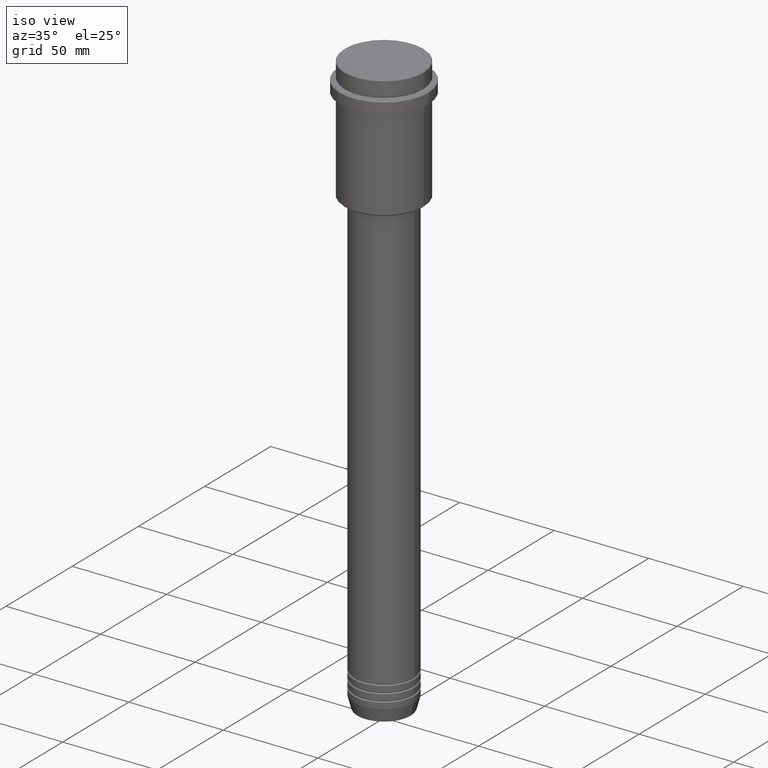
[diagram: clean part render]
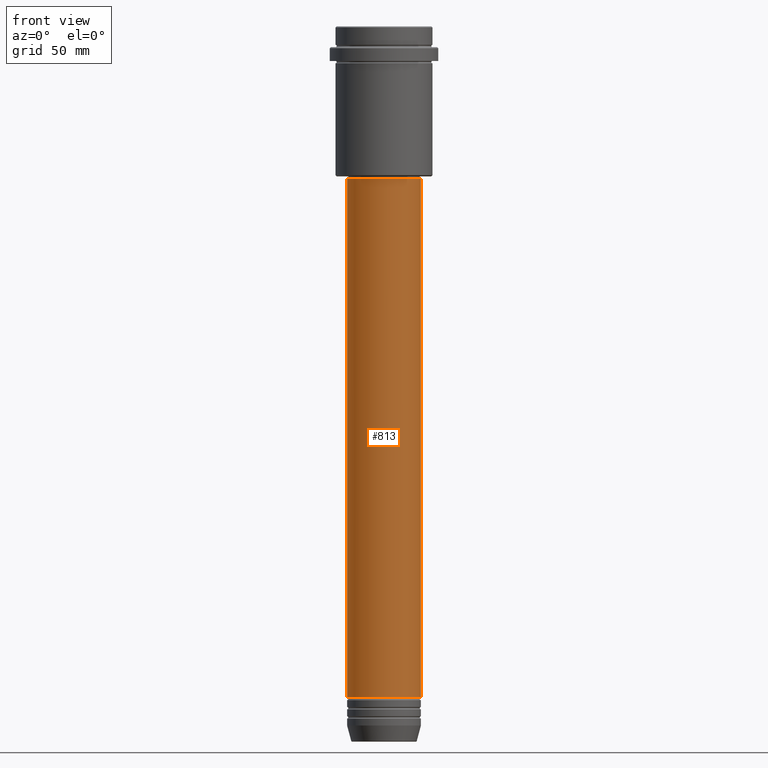
[diagram: tour spotlight — one face highlighted and labeled with its STEP entity id]
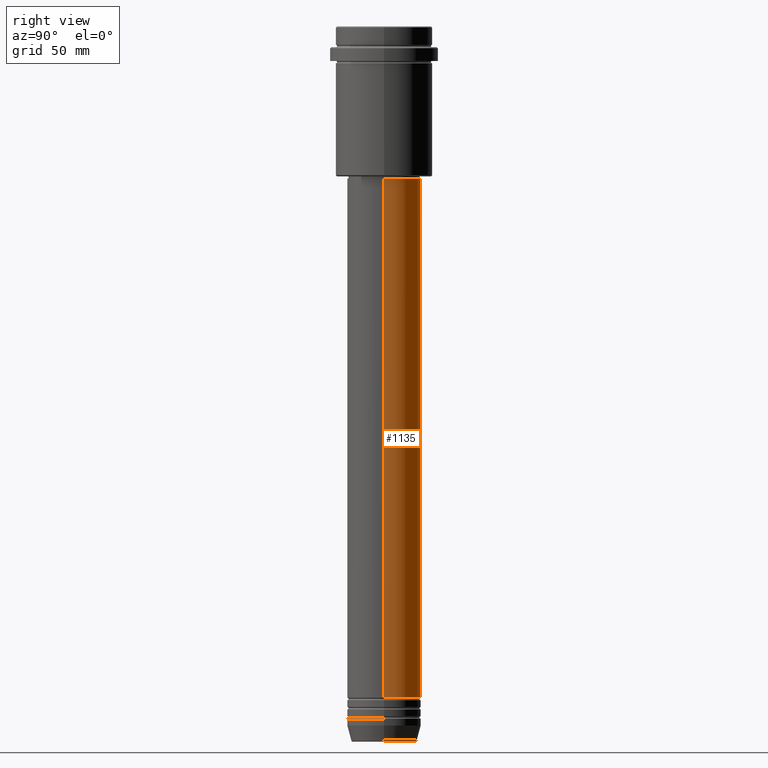
[diagram: tour spotlight — one face highlighted and labeled with its STEP entity id]
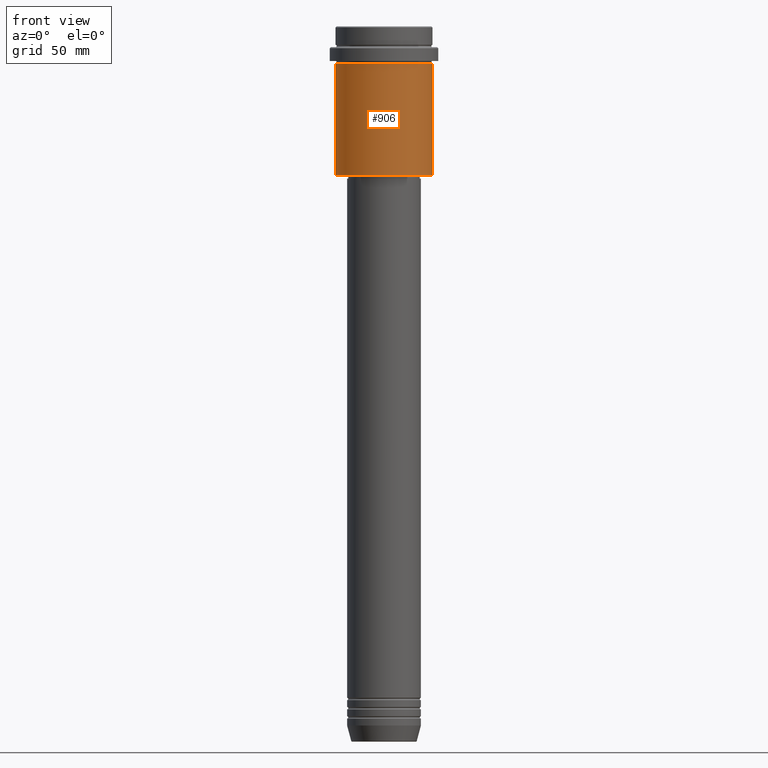
[diagram: tour spotlight — one face highlighted and labeled with its STEP entity id]
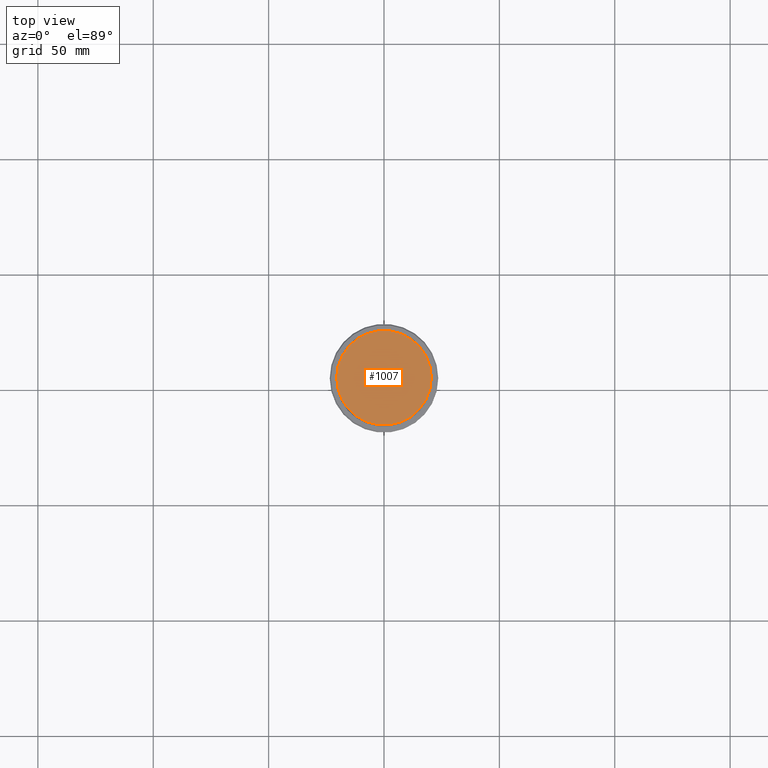
[diagram: tour spotlight — one face highlighted and labeled with its STEP entity id]
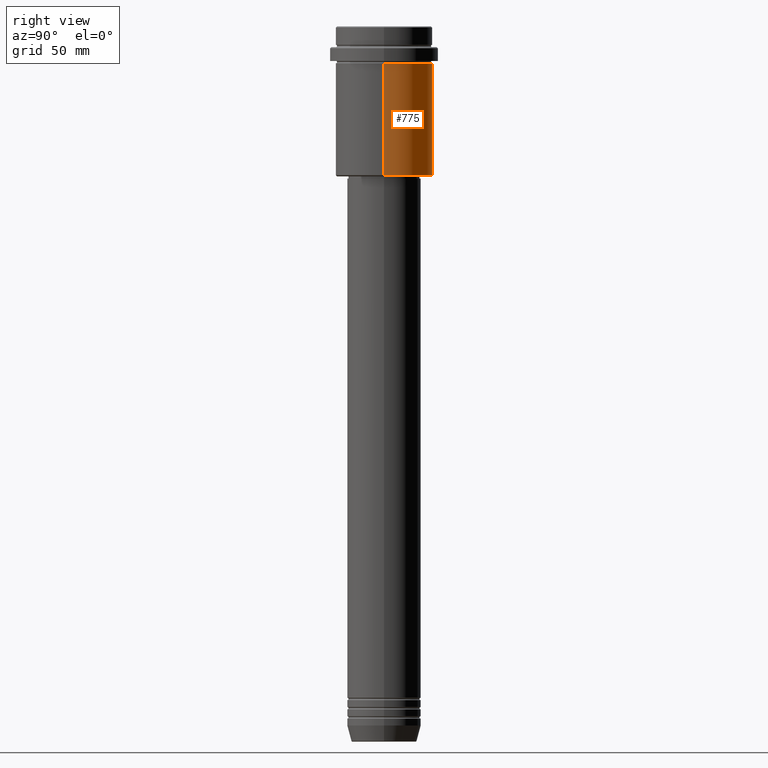
[diagram: tour spotlight — one face highlighted and labeled with its STEP entity id]
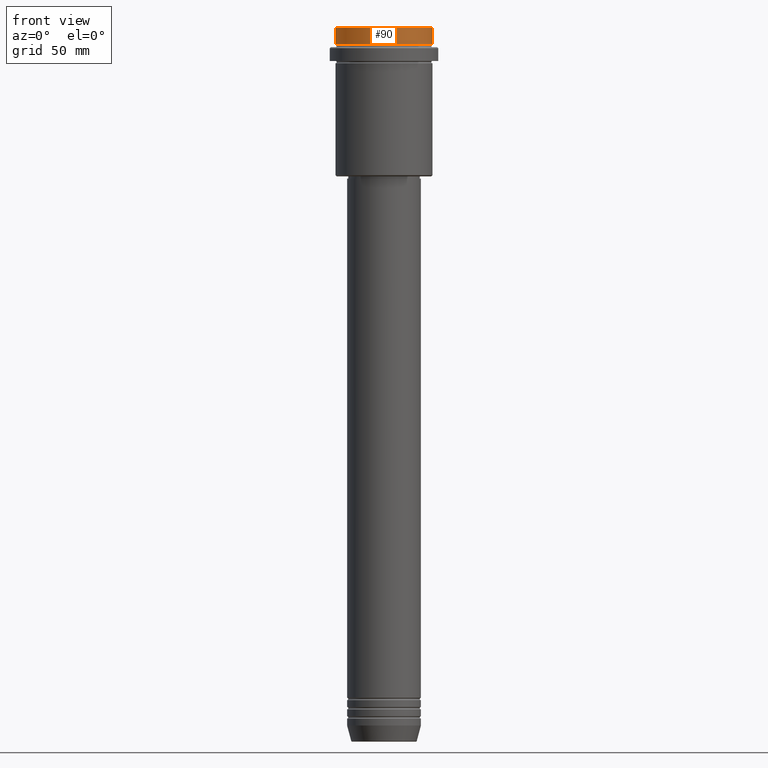
[diagram: tour spotlight — one face highlighted and labeled with its STEP entity id]
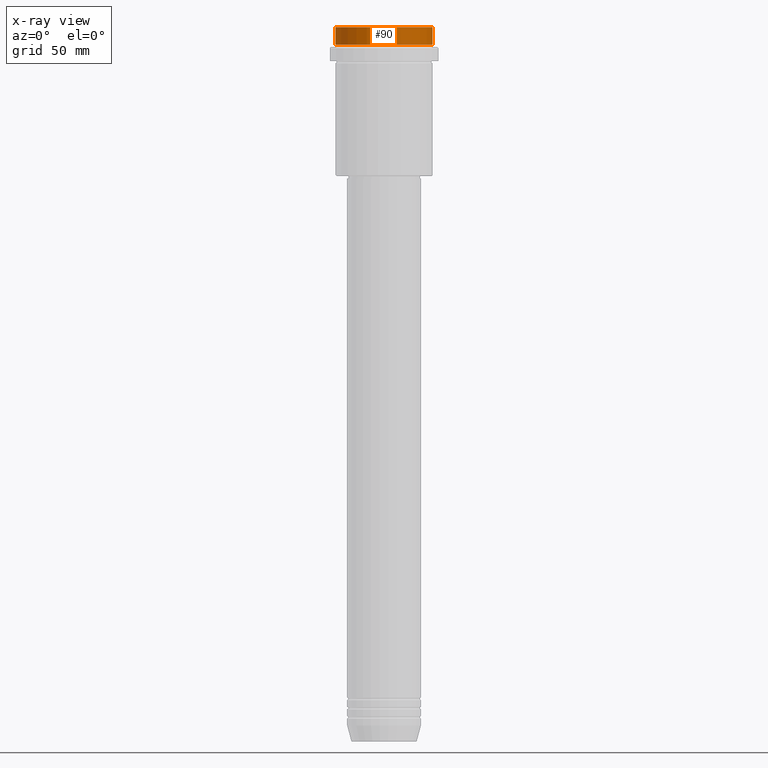
[diagram: x-ray of the same camera — body ghosted, this tour face saturated]
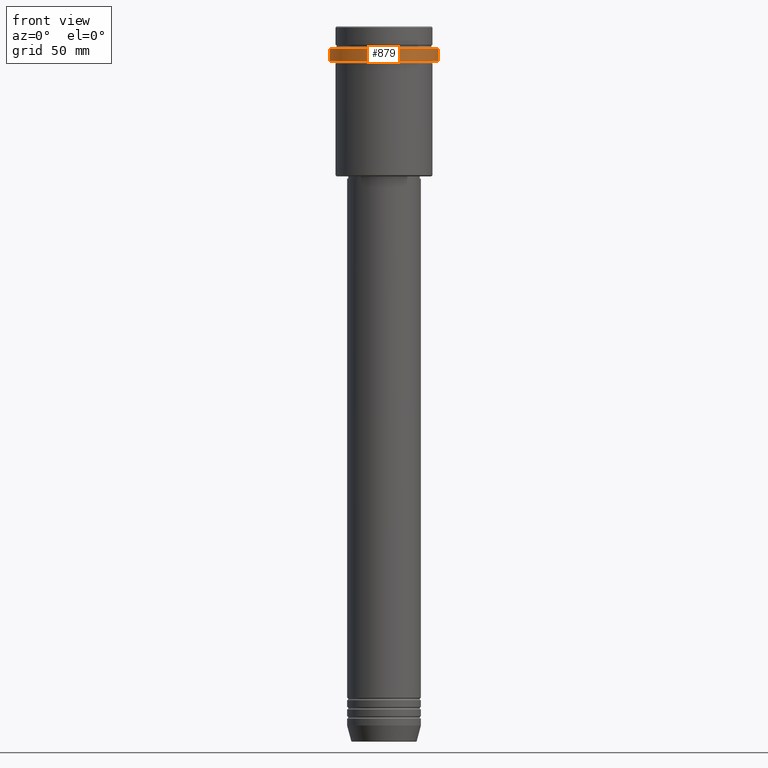
[diagram: tour spotlight — one face highlighted and labeled with its STEP entity id]
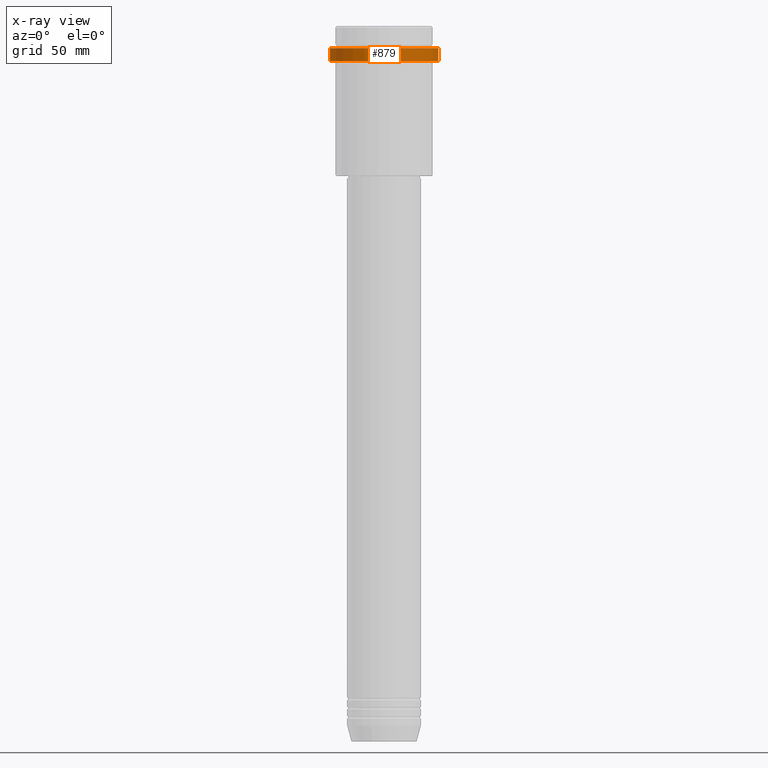
[diagram: x-ray of the same camera — body ghosted, this tour face saturated]
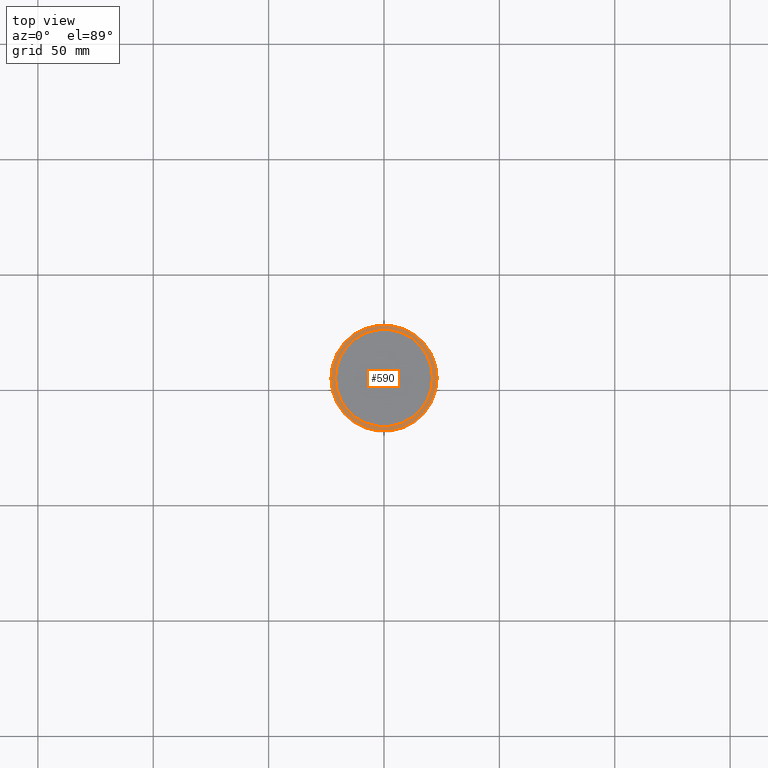
[diagram: tour spotlight — one face highlighted and labeled with its STEP entity id]
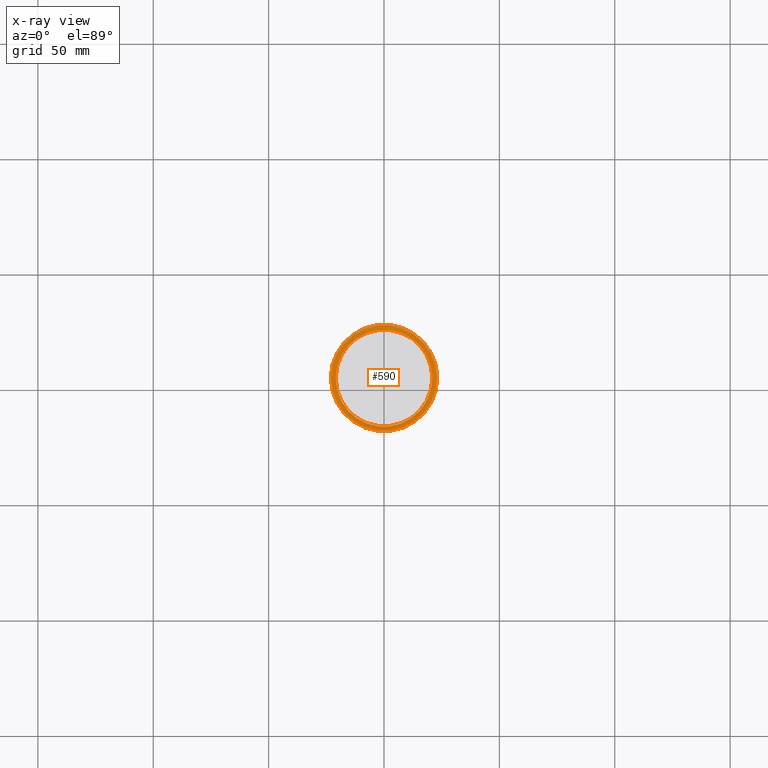
[diagram: x-ray of the same camera — body ghosted, this tour face saturated]
A machine part: a face-by-face anatomy tour. The part has 52 B-rep faces; the first image is the clean iso view, then the 8 largest visible faces are spotlighted one at a time (largest first), each with its STEP entity span.

Face 1 — front view, entity #813. In plain terms, the highlighted cylindrical surface (partial cylindrical patch) has radius 16 mm, axis along (-0, -0, 1).
Definition (entity closure, byte-faithful):
#5 = CARTESIAN_POINT ( 'NONE',  ( -16.00000000000000000, 1.959434878635765131E-15, -290.9999999999998863 ) ) ;
#23 = FACE_OUTER_BOUND ( 'NONE', #1142, .T. ) ;
#30 = DIRECTION ( 'NONE',  ( 1.000000000000000000, 0.000000000000000000, 0.000000000000000000 ) ) ;
#79 = LINE ( 'NONE', #841, #194 ) ;
#89 = DIRECTION ( 'NONE',  ( -0.000000000000000000, -0.000000000000000000, 1.000000000000000000 ) ) ;
#151 = AXIS2_PLACEMENT_3D ( 'NONE', #244, #1115, #30 ) ;
#153 = ORIENTED_EDGE ( 'NONE', *, *, #1412, .T. ) ;
#168 = CARTESIAN_POINT ( 'NONE',  ( 16.00000000000000000, 0.000000000000000000, -290.9999999999998863 ) ) ;
#180 = CARTESIAN_POINT ( 'NONE',  ( 0.000000000000000000, 0.000000000000000000, -290.9999999999998863 ) ) ;
#194 = VECTOR ( 'NONE', #731, 1000.000000000000000 ) ;
#204 = EDGE_CURVE ( 'NONE', #1210, #1396, #1285, .T. ) ;
#214 = CARTESIAN_POINT ( 'NONE',  ( 16.00000000000000355, 0.000000000000000000, -65.99999999999991473 ) ) ;
#244 = CARTESIAN_POINT ( 'NONE',  ( 0.000000000000000000, 0.000000000000000000, 0.000000000000000000 ) ) ;
#395 = CARTESIAN_POINT ( 'NONE',  ( -16.00000000000000355, 1.959434878635765526E-15, -65.99999999999991473 ) ) ;
#403 = ORIENTED_EDGE ( 'NONE', *, *, #582, .F. ) ;
#573 = VERTEX_POINT ( 'NONE', #214 ) ;
#582 = EDGE_CURVE ( 'NONE', #1210, #1119, #79, .T. ) ;
#625 = DIRECTION ( 'NONE',  ( -0.000000000000000000, -0.000000000000000000, 1.000000000000000000 ) ) ;
#641 = VECTOR ( 'NONE', #625, 1000.000000000000000 ) ;
#668 = EDGE_CURVE ( 'NONE', #1119, #573, #1377, .T. ) ;
#696 = AXIS2_PLACEMENT_3D ( 'NONE', #180, #89, #1394 ) ;
#731 = DIRECTION ( 'NONE',  ( -0.000000000000000000, -0.000000000000000000, 1.000000000000000000 ) ) ;
#813 = ADVANCED_FACE ( 'NONE', ( #23 ), #1319, .T. ) ;
#841 = CARTESIAN_POINT ( 'NONE',  ( -16.00000000000000000, 1.959434878635765131E-15, 0.000000000000000000 ) ) ;
#848 = CARTESIAN_POINT ( 'NONE',  ( 0.000000000000000000, 0.000000000000000000, -65.99999999999991473 ) ) ;
#965 = AXIS2_PLACEMENT_3D ( 'NONE', #848, #1293, #1282 ) ;
#1038 = CARTESIAN_POINT ( 'NONE',  ( 16.00000000000000000, 0.000000000000000000, 0.000000000000000000 ) ) ;
#1115 = DIRECTION ( 'NONE',  ( -0.000000000000000000, -0.000000000000000000, 1.000000000000000000 ) ) ;
#1119 = VERTEX_POINT ( 'NONE', #395 ) ;
#1142 = EDGE_LOOP ( 'NONE', ( #403, #1246, #153, #1354 ) ) ;
#1210 = VERTEX_POINT ( 'NONE', #5 ) ;
#1246 = ORIENTED_EDGE ( 'NONE', *, *, #204, .T. ) ;
#1282 = DIRECTION ( 'NONE',  ( 1.000000000000000000, 0.000000000000000000, 0.000000000000000000 ) ) ;
#1285 = CIRCLE ( 'NONE', #696, 16.00000000000000000 ) ;
#1293 = DIRECTION ( 'NONE',  ( -0.000000000000000000, -0.000000000000000000, 1.000000000000000000 ) ) ;
#1319 = CYLINDRICAL_SURFACE ( 'NONE', #151, 16.00000000000000000 ) ;
#1354 = ORIENTED_EDGE ( 'NONE', *, *, #668, .F. ) ;
#1377 = CIRCLE ( 'NONE', #965, 16.00000000000000355 ) ;
#1382 = LINE ( 'NONE', #1038, #641 ) ;
#1394 = DIRECTION ( 'NONE',  ( 1.000000000000000000, 0.000000000000000000, 0.000000000000000000 ) ) ;
#1396 = VERTEX_POINT ( 'NONE', #168 ) ;
#1412 = EDGE_CURVE ( 'NONE', #1396, #573, #1382, .T. ) ;

Face 2 — right view, entity #1135. In plain terms, the highlighted cylindrical surface (partial cylindrical patch) has radius 16 mm, axis along (-0, -0, 1).
Definition (entity closure, byte-faithful):
#5 = CARTESIAN_POINT ( 'NONE',  ( -16.00000000000000000, 1.959434878635765131E-15, -290.9999999999998863 ) ) ;
#73 = EDGE_CURVE ( 'NONE', #1396, #1210, #1283, .T. ) ;
#79 = LINE ( 'NONE', #841, #194 ) ;
#168 = CARTESIAN_POINT ( 'NONE',  ( 16.00000000000000000, 0.000000000000000000, -290.9999999999998863 ) ) ;
#183 = CYLINDRICAL_SURFACE ( 'NONE', #1015, 16.00000000000000000 ) ;
#187 = DIRECTION ( 'NONE',  ( 1.000000000000000000, 0.000000000000000000, 0.000000000000000000 ) ) ;
#191 = AXIS2_PLACEMENT_3D ( 'NONE', #725, #747, #1155 ) ;
#194 = VECTOR ( 'NONE', #731, 1000.000000000000000 ) ;
#214 = CARTESIAN_POINT ( 'NONE',  ( 16.00000000000000355, 0.000000000000000000, -65.99999999999991473 ) ) ;
#223 = EDGE_CURVE ( 'NONE', #573, #1119, #989, .T. ) ;
#381 = ORIENTED_EDGE ( 'NONE', *, *, #223, .F. ) ;
#395 = CARTESIAN_POINT ( 'NONE',  ( -16.00000000000000355, 1.959434878635765526E-15, -65.99999999999991473 ) ) ;
#405 = CARTESIAN_POINT ( 'NONE',  ( 0.000000000000000000, 0.000000000000000000, -290.9999999999998863 ) ) ;
#447 = DIRECTION ( 'NONE',  ( 1.000000000000000000, 0.000000000000000000, 0.000000000000000000 ) ) ;
#540 = ORIENTED_EDGE ( 'NONE', *, *, #1412, .F. ) ;
#542 = ORIENTED_EDGE ( 'NONE', *, *, #73, .T. ) ;
#573 = VERTEX_POINT ( 'NONE', #214 ) ;
#582 = EDGE_CURVE ( 'NONE', #1210, #1119, #79, .T. ) ;
#625 = DIRECTION ( 'NONE',  ( -0.000000000000000000, -0.000000000000000000, 1.000000000000000000 ) ) ;
#641 = VECTOR ( 'NONE', #625, 1000.000000000000000 ) ;
#673 = AXIS2_PLACEMENT_3D ( 'NONE', #405, #940, #187 ) ;
#725 = CARTESIAN_POINT ( 'NONE',  ( 0.000000000000000000, 0.000000000000000000, -65.99999999999991473 ) ) ;
#728 = FACE_OUTER_BOUND ( 'NONE', #887, .T. ) ;
#731 = DIRECTION ( 'NONE',  ( -0.000000000000000000, -0.000000000000000000, 1.000000000000000000 ) ) ;
#747 = DIRECTION ( 'NONE',  ( -0.000000000000000000, -0.000000000000000000, 1.000000000000000000 ) ) ;
#780 = ORIENTED_EDGE ( 'NONE', *, *, #582, .T. ) ;
#841 = CARTESIAN_POINT ( 'NONE',  ( -16.00000000000000000, 1.959434878635765131E-15, 0.000000000000000000 ) ) ;
#887 = EDGE_LOOP ( 'NONE', ( #542, #780, #381, #540 ) ) ;
#940 = DIRECTION ( 'NONE',  ( -0.000000000000000000, -0.000000000000000000, 1.000000000000000000 ) ) ;
#976 = DIRECTION ( 'NONE',  ( -0.000000000000000000, -0.000000000000000000, 1.000000000000000000 ) ) ;
#989 = CIRCLE ( 'NONE', #191, 16.00000000000000355 ) ;
#1015 = AXIS2_PLACEMENT_3D ( 'NONE', #1090, #976, #447 ) ;
#1038 = CARTESIAN_POINT ( 'NONE',  ( 16.00000000000000000, 0.000000000000000000, 0.000000000000000000 ) ) ;
#1090 = CARTESIAN_POINT ( 'NONE',  ( 0.000000000000000000, 0.000000000000000000, 0.000000000000000000 ) ) ;
#1119 = VERTEX_POINT ( 'NONE', #395 ) ;
#1135 = ADVANCED_FACE ( 'NONE', ( #728 ), #183, .T. ) ;
#1155 = DIRECTION ( 'NONE',  ( 1.000000000000000000, 0.000000000000000000, 0.000000000000000000 ) ) ;
#1210 = VERTEX_POINT ( 'NONE', #5 ) ;
#1283 = CIRCLE ( 'NONE', #673, 16.00000000000000000 ) ;
#1382 = LINE ( 'NONE', #1038, #641 ) ;
#1396 = VERTEX_POINT ( 'NONE', #168 ) ;
#1412 = EDGE_CURVE ( 'NONE', #1396, #573, #1382, .T. ) ;

Face 3 — front view, entity #906. In plain terms, the highlighted cylindrical surface (partial cylindrical patch) has radius 21 mm, axis along (-0, -0, 1).
Definition (entity closure, byte-faithful):
#51 = VECTOR ( 'NONE', #1262, 1000.000000000000000 ) ;
#75 = CARTESIAN_POINT ( 'NONE',  ( -21.00000000000000000, 2.571758278209441661E-15, -64.50000000000001421 ) ) ;
#84 = EDGE_CURVE ( 'NONE', #158, #1415, #615, .T. ) ;
#97 = LINE ( 'NONE', #984, #483 ) ;
#103 = EDGE_CURVE ( 'NONE', #1384, #158, #370, .T. ) ;
#158 = VERTEX_POINT ( 'NONE', #504 ) ;
#263 = DIRECTION ( 'NONE',  ( 1.000000000000000000, 0.000000000000000000, 0.000000000000000000 ) ) ;
#270 = CARTESIAN_POINT ( 'NONE',  ( 0.000000000000000000, 0.000000000000000000, 0.000000000000000000 ) ) ;
#323 = EDGE_CURVE ( 'NONE', #1384, #547, #97, .T. ) ;
#370 = CIRCLE ( 'NONE', #528, 21.00000000000000000 ) ;
#376 = FACE_OUTER_BOUND ( 'NONE', #408, .T. ) ;
#397 = CARTESIAN_POINT ( 'NONE',  ( 0.000000000000000000, 0.000000000000000000, -16.00000000000000355 ) ) ;
#400 = EDGE_CURVE ( 'NONE', #547, #1415, #1333, .T. ) ;
#408 = EDGE_LOOP ( 'NONE', ( #594, #772, #664, #1039 ) ) ;
#483 = VECTOR ( 'NONE', #884, 1000.000000000000000 ) ;
#504 = CARTESIAN_POINT ( 'NONE',  ( 21.00000000000000000, 0.000000000000000000, -64.50000000000001421 ) ) ;
#528 = AXIS2_PLACEMENT_3D ( 'NONE', #1056, #1049, #1169 ) ;
#547 = VERTEX_POINT ( 'NONE', #1166 ) ;
#594 = ORIENTED_EDGE ( 'NONE', *, *, #323, .F. ) ;
#615 = LINE ( 'NONE', #1269, #51 ) ;
#664 = ORIENTED_EDGE ( 'NONE', *, *, #84, .T. ) ;
#704 = CARTESIAN_POINT ( 'NONE',  ( 21.00000000000000000, 0.000000000000000000, -16.00000000000000355 ) ) ;
#772 = ORIENTED_EDGE ( 'NONE', *, *, #103, .T. ) ;
#849 = AXIS2_PLACEMENT_3D ( 'NONE', #397, #1110, #1041 ) ;
#884 = DIRECTION ( 'NONE',  ( -0.000000000000000000, -0.000000000000000000, 1.000000000000000000 ) ) ;
#906 = ADVANCED_FACE ( 'NONE', ( #376 ), #1021, .T. ) ;
#984 = CARTESIAN_POINT ( 'NONE',  ( -21.00000000000000000, 2.571758278209441661E-15, 0.000000000000000000 ) ) ;
#1021 = CYLINDRICAL_SURFACE ( 'NONE', #1170, 21.00000000000000000 ) ;
#1039 = ORIENTED_EDGE ( 'NONE', *, *, #400, .F. ) ;
#1041 = DIRECTION ( 'NONE',  ( 1.000000000000000000, 0.000000000000000000, 0.000000000000000000 ) ) ;
#1049 = DIRECTION ( 'NONE',  ( -0.000000000000000000, -0.000000000000000000, 1.000000000000000000 ) ) ;
#1056 = CARTESIAN_POINT ( 'NONE',  ( 0.000000000000000000, 0.000000000000000000, -64.50000000000001421 ) ) ;
#1110 = DIRECTION ( 'NONE',  ( -0.000000000000000000, -0.000000000000000000, 1.000000000000000000 ) ) ;
#1139 = DIRECTION ( 'NONE',  ( -0.000000000000000000, -0.000000000000000000, 1.000000000000000000 ) ) ;
#1166 = CARTESIAN_POINT ( 'NONE',  ( -21.00000000000000000, 2.571758278209441661E-15, -16.00000000000000355 ) ) ;
#1169 = DIRECTION ( 'NONE',  ( -1.000000000000000000, 0.000000000000000000, 0.000000000000000000 ) ) ;
#1170 = AXIS2_PLACEMENT_3D ( 'NONE', #270, #1139, #263 ) ;
#1262 = DIRECTION ( 'NONE',  ( -0.000000000000000000, -0.000000000000000000, 1.000000000000000000 ) ) ;
#1269 = CARTESIAN_POINT ( 'NONE',  ( 21.00000000000000000, 0.000000000000000000, 0.000000000000000000 ) ) ;
#1333 = CIRCLE ( 'NONE', #849, 21.00000000000000000 ) ;
#1384 = VERTEX_POINT ( 'NONE', #75 ) ;
#1415 = VERTEX_POINT ( 'NONE', #704 ) ;

Face 4 — top view, entity #1007. In plain terms, the highlighted planar face has unit normal (0, -0, 1).
Definition (entity closure, byte-faithful):
#31 = CARTESIAN_POINT ( 'NONE',  ( 20.50000000000004619, 2.541142108230760635E-15, 0.000000000000000000 ) ) ;
#48 = DIRECTION ( 'NONE',  ( 1.000000000000000000, 0.000000000000000000, 0.000000000000000000 ) ) ;
#71 = DIRECTION ( 'NONE',  ( -0.000000000000000000, -0.000000000000000000, 1.000000000000000000 ) ) ;
#96 = CIRCLE ( 'NONE', #1229, 20.50000000000004619 ) ;
#228 = VERTEX_POINT ( 'NONE', #761 ) ;
#327 = CIRCLE ( 'NONE', #853, 20.50000000000004619 ) ;
#385 = CARTESIAN_POINT ( 'NONE',  ( 0.000000000000000000, 0.000000000000000000, 0.000000000000000000 ) ) ;
#387 = FACE_OUTER_BOUND ( 'NONE', #867, .T. ) ;
#406 = VERTEX_POINT ( 'NONE', #31 ) ;
#501 = DIRECTION ( 'NONE',  ( 1.000000000000000000, 0.000000000000000000, 0.000000000000000000 ) ) ;
#544 = EDGE_CURVE ( 'NONE', #228, #406, #327, .T. ) ;
#595 = DIRECTION ( 'NONE',  ( -0.000000000000000000, -0.000000000000000000, 1.000000000000000000 ) ) ;
#626 = ORIENTED_EDGE ( 'NONE', *, *, #544, .T. ) ;
#761 = CARTESIAN_POINT ( 'NONE',  ( -20.50000000000004619, 0.000000000000000000, 0.000000000000000000 ) ) ;
#769 = AXIS2_PLACEMENT_3D ( 'NONE', #823, #1152, #48 ) ;
#823 = CARTESIAN_POINT ( 'NONE',  ( 0.000000000000000000, 0.000000000000000000, 0.000000000000000000 ) ) ;
#853 = AXIS2_PLACEMENT_3D ( 'NONE', #1154, #71, #501 ) ;
#867 = EDGE_LOOP ( 'NONE', ( #626, #907 ) ) ;
#907 = ORIENTED_EDGE ( 'NONE', *, *, #1357, .T. ) ;
#1007 = ADVANCED_FACE ( 'NONE', ( #387 ), #1027, .T. ) ;
#1027 = PLANE ( 'NONE',  #769 ) ;
#1152 = DIRECTION ( 'NONE',  ( 0.000000000000000000, -0.000000000000000000, 1.000000000000000000 ) ) ;
#1154 = CARTESIAN_POINT ( 'NONE',  ( 0.000000000000000000, 0.000000000000000000, 0.000000000000000000 ) ) ;
#1229 = AXIS2_PLACEMENT_3D ( 'NONE', #385, #595, #1361 ) ;
#1357 = EDGE_CURVE ( 'NONE', #406, #228, #96, .T. ) ;
#1361 = DIRECTION ( 'NONE',  ( 1.000000000000000000, 0.000000000000000000, 0.000000000000000000 ) ) ;

Face 5 — right view, entity #775. In plain terms, the highlighted cylindrical surface (partial cylindrical patch) has radius 21 mm, axis along (-0, -0, 1).
Definition (entity closure, byte-faithful):
#51 = VECTOR ( 'NONE', #1262, 1000.000000000000000 ) ;
#75 = CARTESIAN_POINT ( 'NONE',  ( -21.00000000000000000, 2.571758278209441661E-15, -64.50000000000001421 ) ) ;
#84 = EDGE_CURVE ( 'NONE', #158, #1415, #615, .T. ) ;
#97 = LINE ( 'NONE', #984, #483 ) ;
#158 = VERTEX_POINT ( 'NONE', #504 ) ;
#222 = DIRECTION ( 'NONE',  ( 1.000000000000000000, 0.000000000000000000, 0.000000000000000000 ) ) ;
#239 = AXIS2_PLACEMENT_3D ( 'NONE', #910, #888, #222 ) ;
#323 = EDGE_CURVE ( 'NONE', #1384, #547, #97, .T. ) ;
#425 = ORIENTED_EDGE ( 'NONE', *, *, #323, .T. ) ;
#437 = ORIENTED_EDGE ( 'NONE', *, *, #84, .F. ) ;
#483 = VECTOR ( 'NONE', #884, 1000.000000000000000 ) ;
#500 = EDGE_LOOP ( 'NONE', ( #1044, #425, #856, #437 ) ) ;
#504 = CARTESIAN_POINT ( 'NONE',  ( 21.00000000000000000, 0.000000000000000000, -64.50000000000001421 ) ) ;
#547 = VERTEX_POINT ( 'NONE', #1166 ) ;
#569 = FACE_OUTER_BOUND ( 'NONE', #500, .T. ) ;
#615 = LINE ( 'NONE', #1269, #51 ) ;
#651 = EDGE_CURVE ( 'NONE', #1415, #547, #826, .T. ) ;
#704 = CARTESIAN_POINT ( 'NONE',  ( 21.00000000000000000, 0.000000000000000000, -16.00000000000000355 ) ) ;
#742 = AXIS2_PLACEMENT_3D ( 'NONE', #871, #954, #1401 ) ;
#750 = DIRECTION ( 'NONE',  ( -1.000000000000000000, 0.000000000000000000, 0.000000000000000000 ) ) ;
#775 = ADVANCED_FACE ( 'NONE', ( #569 ), #1330, .T. ) ;
#826 = CIRCLE ( 'NONE', #742, 21.00000000000000000 ) ;
#854 = CARTESIAN_POINT ( 'NONE',  ( 0.000000000000000000, 0.000000000000000000, -64.50000000000001421 ) ) ;
#855 = AXIS2_PLACEMENT_3D ( 'NONE', #854, #1374, #750 ) ;
#856 = ORIENTED_EDGE ( 'NONE', *, *, #651, .F. ) ;
#871 = CARTESIAN_POINT ( 'NONE',  ( 0.000000000000000000, 0.000000000000000000, -16.00000000000000355 ) ) ;
#884 = DIRECTION ( 'NONE',  ( -0.000000000000000000, -0.000000000000000000, 1.000000000000000000 ) ) ;
#888 = DIRECTION ( 'NONE',  ( -0.000000000000000000, -0.000000000000000000, 1.000000000000000000 ) ) ;
#910 = CARTESIAN_POINT ( 'NONE',  ( 0.000000000000000000, 0.000000000000000000, 0.000000000000000000 ) ) ;
#954 = DIRECTION ( 'NONE',  ( -0.000000000000000000, -0.000000000000000000, 1.000000000000000000 ) ) ;
#984 = CARTESIAN_POINT ( 'NONE',  ( -21.00000000000000000, 2.571758278209441661E-15, 0.000000000000000000 ) ) ;
#1044 = ORIENTED_EDGE ( 'NONE', *, *, #1132, .T. ) ;
#1132 = EDGE_CURVE ( 'NONE', #158, #1384, #1337, .T. ) ;
#1166 = CARTESIAN_POINT ( 'NONE',  ( -21.00000000000000000, 2.571758278209441661E-15, -16.00000000000000355 ) ) ;
#1262 = DIRECTION ( 'NONE',  ( -0.000000000000000000, -0.000000000000000000, 1.000000000000000000 ) ) ;
#1269 = CARTESIAN_POINT ( 'NONE',  ( 21.00000000000000000, 0.000000000000000000, 0.000000000000000000 ) ) ;
#1330 = CYLINDRICAL_SURFACE ( 'NONE', #239, 21.00000000000000000 ) ;
#1337 = CIRCLE ( 'NONE', #855, 21.00000000000000000 ) ;
#1374 = DIRECTION ( 'NONE',  ( -0.000000000000000000, -0.000000000000000000, 1.000000000000000000 ) ) ;
#1384 = VERTEX_POINT ( 'NONE', #75 ) ;
#1401 = DIRECTION ( 'NONE',  ( 1.000000000000000000, 0.000000000000000000, 0.000000000000000000 ) ) ;
#1415 = VERTEX_POINT ( 'NONE', #704 ) ;

Face 6 — front view, entity #90. An x-ray twin of the same camera follows (body ghosted, this face saturated) — the face is partly hidden behind the body. In plain terms, the highlighted cylindrical surface (partial cylindrical patch) has radius 21 mm, axis along (-0, -0, 1).
Definition (entity closure, byte-faithful):
#57 = AXIS2_PLACEMENT_3D ( 'NONE', #201, #296, #1075 ) ;
#59 = EDGE_LOOP ( 'NONE', ( #977, #650, #1096, #935 ) ) ;
#65 = FACE_OUTER_BOUND ( 'NONE', #59, .T. ) ;
#87 = CARTESIAN_POINT ( 'NONE',  ( -21.00000000000000000, 2.571758278209441661E-15, -0.4999999999999553690 ) ) ;
#90 = ADVANCED_FACE ( 'NONE', ( #65 ), #291, .T. ) ;
#92 = EDGE_CURVE ( 'NONE', #1360, #458, #308, .T. ) ;
#156 = EDGE_CURVE ( 'NONE', #1066, #1052, #278, .T. ) ;
#169 = EDGE_CURVE ( 'NONE', #1066, #1360, #417, .T. ) ;
#201 = CARTESIAN_POINT ( 'NONE',  ( 0.000000000000000000, 0.000000000000000000, -0.4999999999999553690 ) ) ;
#278 = LINE ( 'NONE', #1371, #715 ) ;
#291 = CYLINDRICAL_SURFACE ( 'NONE', #1400, 21.00000000000000000 ) ;
#296 = DIRECTION ( 'NONE',  ( 0.000000000000000000, 0.000000000000000000, -1.000000000000000000 ) ) ;
#308 = LINE ( 'NONE', #949, #873 ) ;
#417 = CIRCLE ( 'NONE', #441, 21.00000000000000000 ) ;
#441 = AXIS2_PLACEMENT_3D ( 'NONE', #623, #717, #1149 ) ;
#458 = VERTEX_POINT ( 'NONE', #1268 ) ;
#496 = DIRECTION ( 'NONE',  ( -0.000000000000000000, -0.000000000000000000, 1.000000000000000000 ) ) ;
#514 = CARTESIAN_POINT ( 'NONE',  ( 0.000000000000000000, 0.000000000000000000, 0.000000000000000000 ) ) ;
#575 = EDGE_CURVE ( 'NONE', #458, #1052, #880, .T. ) ;
#623 = CARTESIAN_POINT ( 'NONE',  ( 0.000000000000000000, 0.000000000000000000, -7.999999999999998224 ) ) ;
#650 = ORIENTED_EDGE ( 'NONE', *, *, #169, .T. ) ;
#715 = VECTOR ( 'NONE', #1365, 1000.000000000000000 ) ;
#717 = DIRECTION ( 'NONE',  ( -0.000000000000000000, -0.000000000000000000, 1.000000000000000000 ) ) ;
#738 = DIRECTION ( 'NONE',  ( -0.000000000000000000, -0.000000000000000000, 1.000000000000000000 ) ) ;
#873 = VECTOR ( 'NONE', #496, 1000.000000000000000 ) ;
#880 = CIRCLE ( 'NONE', #57, 21.00000000000000000 ) ;
#935 = ORIENTED_EDGE ( 'NONE', *, *, #575, .T. ) ;
#949 = CARTESIAN_POINT ( 'NONE',  ( 21.00000000000000000, 0.000000000000000000, 0.000000000000000000 ) ) ;
#977 = ORIENTED_EDGE ( 'NONE', *, *, #156, .F. ) ;
#1052 = VERTEX_POINT ( 'NONE', #87 ) ;
#1066 = VERTEX_POINT ( 'NONE', #1164 ) ;
#1075 = DIRECTION ( 'NONE',  ( 1.000000000000000000, 0.000000000000000000, 0.000000000000000000 ) ) ;
#1096 = ORIENTED_EDGE ( 'NONE', *, *, #92, .T. ) ;
#1149 = DIRECTION ( 'NONE',  ( 1.000000000000000000, 0.000000000000000000, 0.000000000000000000 ) ) ;
#1164 = CARTESIAN_POINT ( 'NONE',  ( -21.00000000000000000, 2.571758278209441661E-15, -7.999999999999998224 ) ) ;
#1174 = DIRECTION ( 'NONE',  ( 1.000000000000000000, 0.000000000000000000, 0.000000000000000000 ) ) ;
#1268 = CARTESIAN_POINT ( 'NONE',  ( 21.00000000000000000, 0.000000000000000000, -0.4999999999999553690 ) ) ;
#1360 = VERTEX_POINT ( 'NONE', #1372 ) ;
#1365 = DIRECTION ( 'NONE',  ( -0.000000000000000000, -0.000000000000000000, 1.000000000000000000 ) ) ;
#1371 = CARTESIAN_POINT ( 'NONE',  ( -21.00000000000000000, 2.571758278209441661E-15, 0.000000000000000000 ) ) ;
#1372 = CARTESIAN_POINT ( 'NONE',  ( 21.00000000000000000, 0.000000000000000000, -7.999999999999998224 ) ) ;
#1400 = AXIS2_PLACEMENT_3D ( 'NONE', #514, #738, #1174 ) ;

Face 7 — front view, entity #879. An x-ray twin of the same camera follows (body ghosted, this face saturated) — the face is partly hidden behind the body. In plain terms, the highlighted cylindrical surface (partial cylindrical patch) has radius 23.5 mm, axis along (-0, -0, 1).
Definition (entity closure, byte-faithful):
#4 = VERTEX_POINT ( 'NONE', #1342 ) ;
#58 = VECTOR ( 'NONE', #416, 1000.000000000000000 ) ;
#77 = CARTESIAN_POINT ( 'NONE',  ( 23.50000000000000000, 0.000000000000000000, 0.000000000000000000 ) ) ;
#142 = CARTESIAN_POINT ( 'NONE',  ( -23.50000000000000711, 2.877919977996281109E-15, -15.00000000000000000 ) ) ;
#155 = AXIS2_PLACEMENT_3D ( 'NONE', #908, #797, #1343 ) ;
#230 = EDGE_CURVE ( 'NONE', #419, #1191, #1309, .T. ) ;
#238 = DIRECTION ( 'NONE',  ( -0.000000000000000000, -0.000000000000000000, 1.000000000000000000 ) ) ;
#246 = CARTESIAN_POINT ( 'NONE',  ( 23.50000000000000355, 0.000000000000000000, -15.00000000000000000 ) ) ;
#287 = ORIENTED_EDGE ( 'NONE', *, *, #230, .T. ) ;
#312 = DIRECTION ( 'NONE',  ( 1.000000000000000000, 0.000000000000000000, 0.000000000000000000 ) ) ;
#318 = CARTESIAN_POINT ( 'NONE',  ( 0.000000000000000000, 0.000000000000000000, -15.00000000000000000 ) ) ;
#330 = CIRCLE ( 'NONE', #155, 23.50000000000000000 ) ;
#416 = DIRECTION ( 'NONE',  ( -0.000000000000000000, -0.000000000000000000, 1.000000000000000000 ) ) ;
#419 = VERTEX_POINT ( 'NONE', #142 ) ;
#519 = CARTESIAN_POINT ( 'NONE',  ( -23.50000000000000000, 2.877919977996280320E-15, 0.000000000000000000 ) ) ;
#612 = DIRECTION ( 'NONE',  ( 1.000000000000000000, 0.000000000000000000, 0.000000000000000000 ) ) ;
#633 = EDGE_CURVE ( 'NONE', #419, #4, #971, .T. ) ;
#636 = DIRECTION ( 'NONE',  ( -0.000000000000000000, -0.000000000000000000, 1.000000000000000000 ) ) ;
#797 = DIRECTION ( 'NONE',  ( 0.000000000000000000, 0.000000000000000000, -1.000000000000000000 ) ) ;
#806 = AXIS2_PLACEMENT_3D ( 'NONE', #318, #238, #312 ) ;
#879 = ADVANCED_FACE ( 'NONE', ( #1346 ), #918, .T. ) ;
#908 = CARTESIAN_POINT ( 'NONE',  ( 0.000000000000000000, 0.000000000000000000, -9.500000000000000000 ) ) ;
#909 = ORIENTED_EDGE ( 'NONE', *, *, #633, .F. ) ;
#914 = ORIENTED_EDGE ( 'NONE', *, *, #1264, .T. ) ;
#915 = DIRECTION ( 'NONE',  ( -0.000000000000000000, -0.000000000000000000, 1.000000000000000000 ) ) ;
#918 = CYLINDRICAL_SURFACE ( 'NONE', #1314, 23.50000000000000000 ) ;
#971 = LINE ( 'NONE', #519, #1106 ) ;
#1005 = EDGE_LOOP ( 'NONE', ( #909, #287, #1399, #914 ) ) ;
#1040 = CARTESIAN_POINT ( 'NONE',  ( 0.000000000000000000, 0.000000000000000000, 0.000000000000000000 ) ) ;
#1072 = VERTEX_POINT ( 'NONE', #1182 ) ;
#1106 = VECTOR ( 'NONE', #636, 1000.000000000000000 ) ;
#1129 = EDGE_CURVE ( 'NONE', #1191, #1072, #1397, .T. ) ;
#1182 = CARTESIAN_POINT ( 'NONE',  ( 23.50000000000000000, 0.000000000000000000, -9.500000000000000000 ) ) ;
#1191 = VERTEX_POINT ( 'NONE', #246 ) ;
#1264 = EDGE_CURVE ( 'NONE', #1072, #4, #330, .T. ) ;
#1309 = CIRCLE ( 'NONE', #806, 23.50000000000000355 ) ;
#1314 = AXIS2_PLACEMENT_3D ( 'NONE', #1040, #915, #612 ) ;
#1342 = CARTESIAN_POINT ( 'NONE',  ( -23.50000000000000000, 2.877919977996280320E-15, -9.500000000000000000 ) ) ;
#1343 = DIRECTION ( 'NONE',  ( 1.000000000000000000, 0.000000000000000000, 0.000000000000000000 ) ) ;
#1346 = FACE_OUTER_BOUND ( 'NONE', #1005, .T. ) ;
#1397 = LINE ( 'NONE', #77, #58 ) ;
#1399 = ORIENTED_EDGE ( 'NONE', *, *, #1129, .T. ) ;

Face 8 — top view, entity #590. An x-ray twin of the same camera follows (body ghosted, this face saturated) — the face is partly hidden behind the body. In plain terms, the highlighted planar face has unit normal (0, -0, 1).
Definition (entity closure, byte-faithful):
#11 = AXIS2_PLACEMENT_3D ( 'NONE', #350, #1341, #1046 ) ;
#83 = CARTESIAN_POINT ( 'NONE',  ( 0.000000000000000000, 0.000000000000000000, -9.000000000000000000 ) ) ;
#102 = FACE_BOUND ( 'NONE', #752, .T. ) ;
#109 = VERTEX_POINT ( 'NONE', #490 ) ;
#145 = ORIENTED_EDGE ( 'NONE', *, *, #266, .T. ) ;
#186 = EDGE_CURVE ( 'NONE', #1177, #109, #1355, .T. ) ;
#243 = VERTEX_POINT ( 'NONE', #1101 ) ;
#266 = EDGE_CURVE ( 'NONE', #1345, #243, #1257, .T. ) ;
#300 = EDGE_LOOP ( 'NONE', ( #366, #145 ) ) ;
#334 = ORIENTED_EDGE ( 'NONE', *, *, #524, .T. ) ;
#350 = CARTESIAN_POINT ( 'NONE',  ( 0.000000000000000000, 0.000000000000000000, -9.000000000000000000 ) ) ;
#366 = ORIENTED_EDGE ( 'NONE', *, *, #912, .T. ) ;
#443 = AXIS2_PLACEMENT_3D ( 'NONE', #1045, #804, #1351 ) ;
#490 = CARTESIAN_POINT ( 'NONE',  ( 20.99999999999999289, 0.000000000000000000, -9.000000000000000000 ) ) ;
#511 = FACE_OUTER_BOUND ( 'NONE', #300, .T. ) ;
#524 = EDGE_CURVE ( 'NONE', #109, #1177, #697, .T. ) ;
#560 = AXIS2_PLACEMENT_3D ( 'NONE', #678, #1179, #872 ) ;
#590 = ADVANCED_FACE ( 'NONE', ( #511, #102 ), #948, .T. ) ;
#609 = DIRECTION ( 'NONE',  ( 1.000000000000000000, 0.000000000000000000, 0.000000000000000000 ) ) ;
#678 = CARTESIAN_POINT ( 'NONE',  ( 0.000000000000000000, 0.000000000000000000, -9.000000000000000000 ) ) ;
#697 = CIRCLE ( 'NONE', #11, 20.99999999999999289 ) ;
#752 = EDGE_LOOP ( 'NONE', ( #334, #1297 ) ) ;
#804 = DIRECTION ( 'NONE',  ( -0.000000000000000000, -0.000000000000000000, 1.000000000000000000 ) ) ;
#872 = DIRECTION ( 'NONE',  ( 1.000000000000000000, 0.000000000000000000, 0.000000000000000000 ) ) ;
#886 = CARTESIAN_POINT ( 'NONE',  ( -20.99999999999999289, 2.571758278209440872E-15, -9.000000000000000000 ) ) ;
#912 = EDGE_CURVE ( 'NONE', #243, #1345, #1057, .T. ) ;
#948 = PLANE ( 'NONE',  #1034 ) ;
#1034 = AXIS2_PLACEMENT_3D ( 'NONE', #1411, #1386, #1393 ) ;
#1043 = CARTESIAN_POINT ( 'NONE',  ( 23.00000000000002487, 2.847303808017597717E-15, -9.000000000000000000 ) ) ;
#1045 = CARTESIAN_POINT ( 'NONE',  ( 0.000000000000000000, 0.000000000000000000, -9.000000000000000000 ) ) ;
#1046 = DIRECTION ( 'NONE',  ( 1.000000000000000000, 0.000000000000000000, 0.000000000000000000 ) ) ;
#1057 = CIRCLE ( 'NONE', #443, 23.00000000000002487 ) ;
#1063 = DIRECTION ( 'NONE',  ( 0.000000000000000000, 0.000000000000000000, -1.000000000000000000 ) ) ;
#1101 = CARTESIAN_POINT ( 'NONE',  ( -23.00000000000002487, 0.000000000000000000, -9.000000000000000000 ) ) ;
#1167 = AXIS2_PLACEMENT_3D ( 'NONE', #83, #1063, #609 ) ;
#1177 = VERTEX_POINT ( 'NONE', #886 ) ;
#1179 = DIRECTION ( 'NONE',  ( -0.000000000000000000, -0.000000000000000000, 1.000000000000000000 ) ) ;
#1257 = CIRCLE ( 'NONE', #560, 23.00000000000002487 ) ;
#1297 = ORIENTED_EDGE ( 'NONE', *, *, #186, .T. ) ;
#1341 = DIRECTION ( 'NONE',  ( 0.000000000000000000, 0.000000000000000000, -1.000000000000000000 ) ) ;
#1345 = VERTEX_POINT ( 'NONE', #1043 ) ;
#1351 = DIRECTION ( 'NONE',  ( 1.000000000000000000, 0.000000000000000000, 0.000000000000000000 ) ) ;
#1355 = CIRCLE ( 'NONE', #1167, 20.99999999999999289 ) ;
#1386 = DIRECTION ( 'NONE',  ( 0.000000000000000000, -0.000000000000000000, 1.000000000000000000 ) ) ;
#1393 = DIRECTION ( 'NONE',  ( 1.000000000000000000, 0.000000000000000000, 0.000000000000000000 ) ) ;
#1411 = CARTESIAN_POINT ( 'NONE',  ( 0.000000000000000000, 20.49999999999999645, -9.000000000000000000 ) ) ;